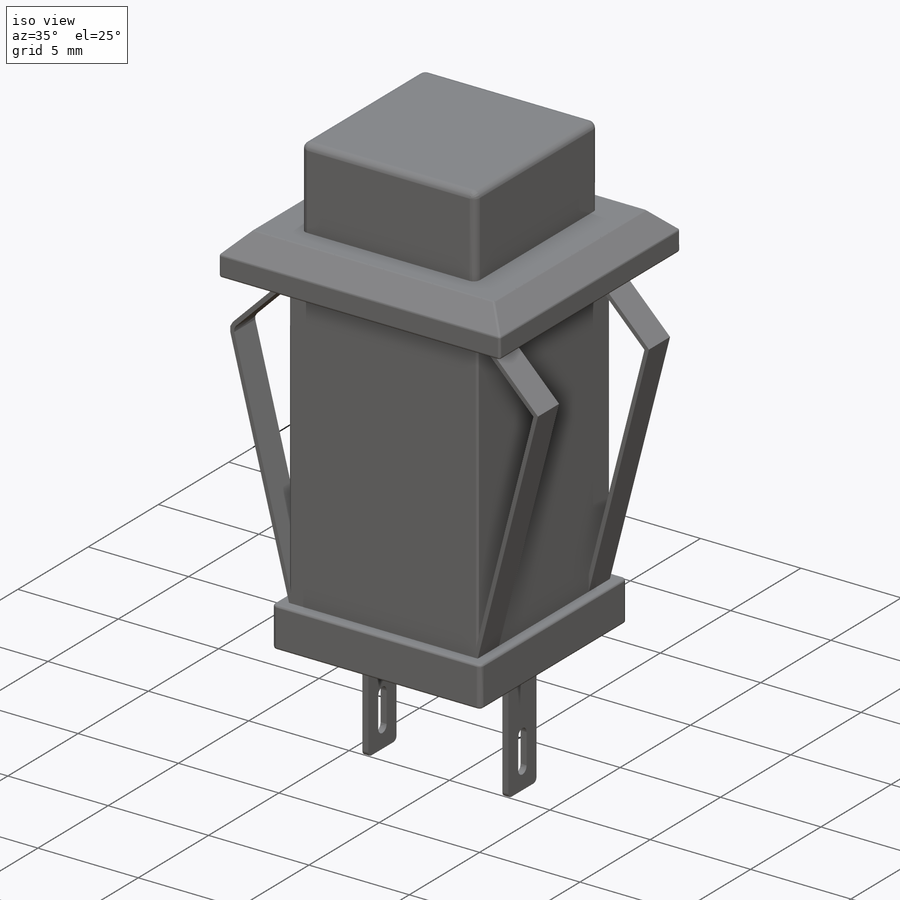
[diagram: iso view]
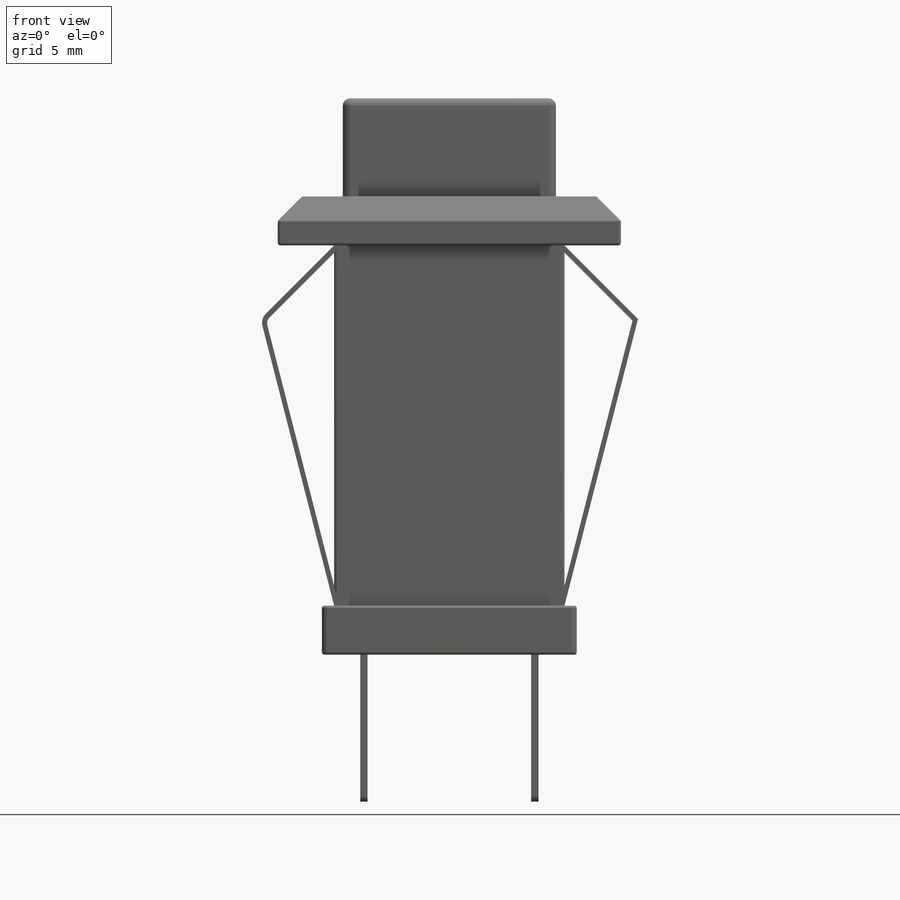
[diagram: front view]
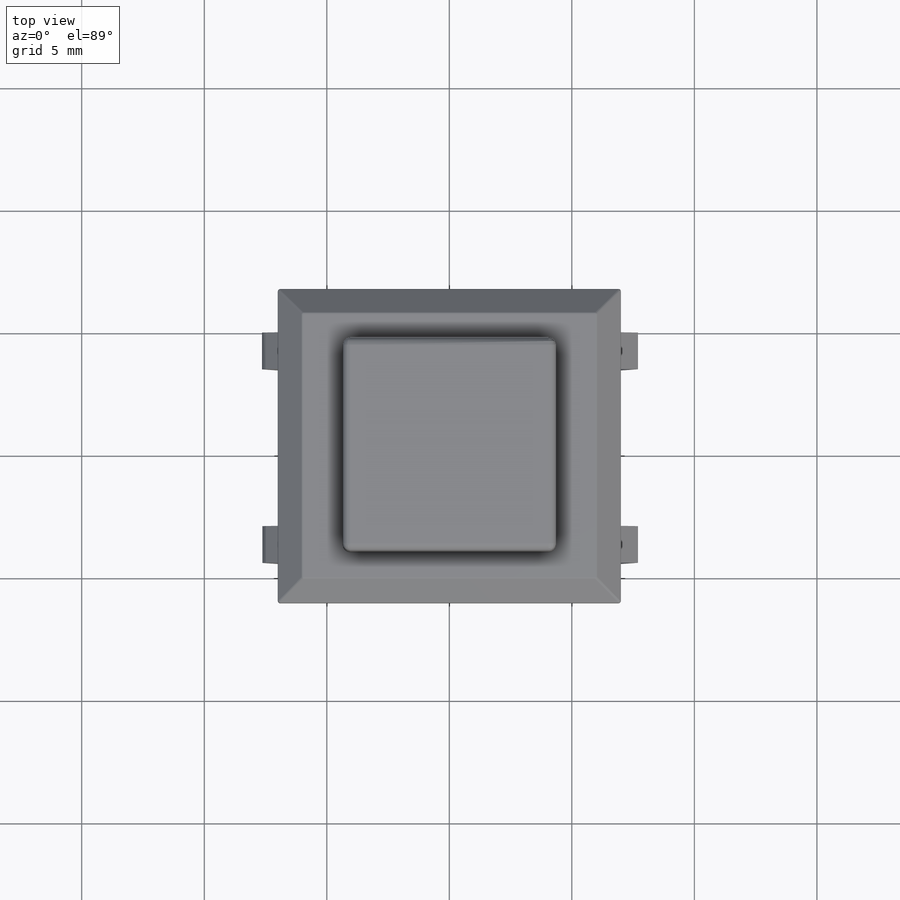
[diagram: top view]
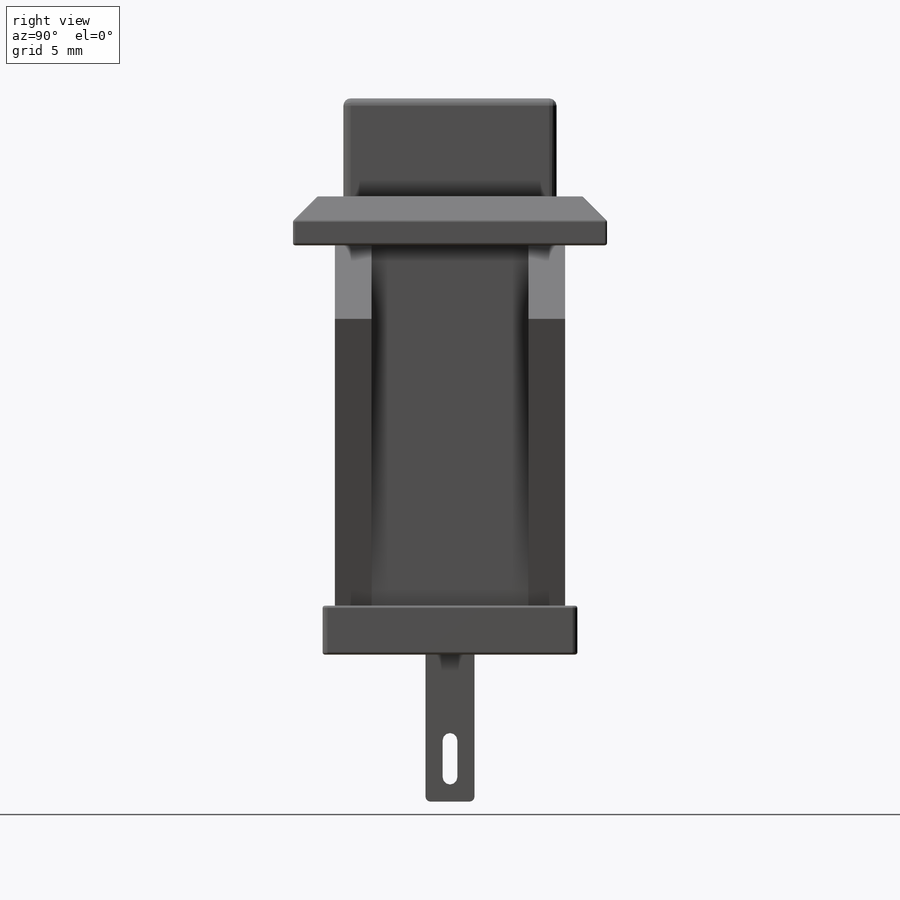
[diagram: right view]
SOLIDWORKS PART (.sldprt)
format: sldprt  version: not decoded by parser v0  size: 513,024 bytes
history: native  units: mm
features: sketch x8, fillet x6, extrude x5, cut_extrude x3, material x1, chamfer x1, mirror x1 (+11 scaffold rows collapsed)
feature tree (36):
  scaffold x11  (default folders/planes/origin — collapsed)
  material  "Material <not specified>"
  sketch  "Sketch1"  dims[D3=0.3mm D1=8.7mm D2=8.7mm]
  extrude  "Boss-Extrude1"  Depth=4mm
  sketch  "Sketch2"  dims[D1=14.0mm D2=~12.817824mm]
  extrude  "Boss-Extrude3"  Depth=2mm
  chamfer  "Chamfer1"  Distance=1mm Angle=45deg
  fillet  "Fillet1"  Radius=0.3mm
  sketch  "Sketch3"  dims[D1=10.4mm D2=10.4mm]
  extrude  "Boss-Extrude4"  Depth=16.7mm
  sketch  "Sketch4"  dims[D1=0.0mm D2=0.5mm]
  cut_extrude  "Cut-Extrude2"  Depth=2mm
  sketch  "Sketch6"  dims[c1.D1=0.3mm c1.D2=~10.616916mm c2.D2=~178.950569deg c3.D2=~0.11599mm c3.D3=3.0mm c4.D2=3.0mm c4.D4=0.2mm]
  extrude  "Boss-Extrude5"  Depth=1.5mm
  fillet  "Fillet2"  Radius=0.3mm
  fillet  "Fillet3"  Radius=0.5mm
  mirror  "Mirror3"
  sketch  "Sketch7"  dims[D1=0.3mm D2=2.0mm]
  extrude  "Boss-Extrude6"  Depth=6mm
  sketch  "Sketch8"  dims[D3=0.3mm D1=1.0mm D2=1.5mm]
  cut_extrude  "Cut-Extrude3"  [1 undecoded]
  fillet  "Fillet4"  Radius=0.2mm
  sketch  "Sketch9"  dims[D1=1.0mm]
  cut_extrude  "Cut-Extrude4"  Depth=10mm
  fillet  "Fillet5"  Radius=0.1mm
  fillet  "Fillet6"  Radius=0.1mm
decode coverage: 22 of 24 modeling features carry decoded parameters
note: ~ marks probable driven/reference dimensions
note: 1 parameter value undecoded
note: suppression state not decoded; provenance and decode notes live in map.json
